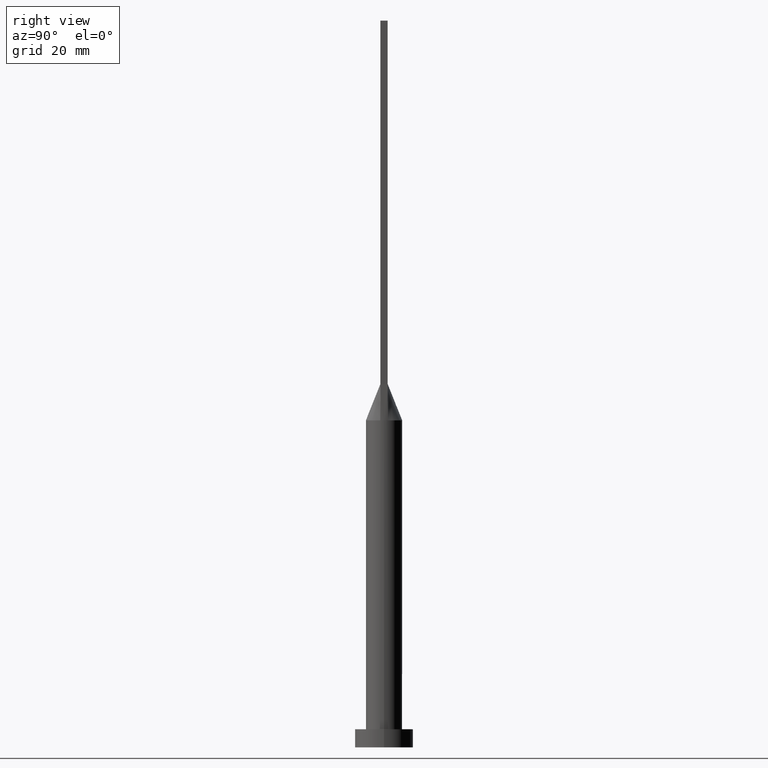
[diagram: clean part render]
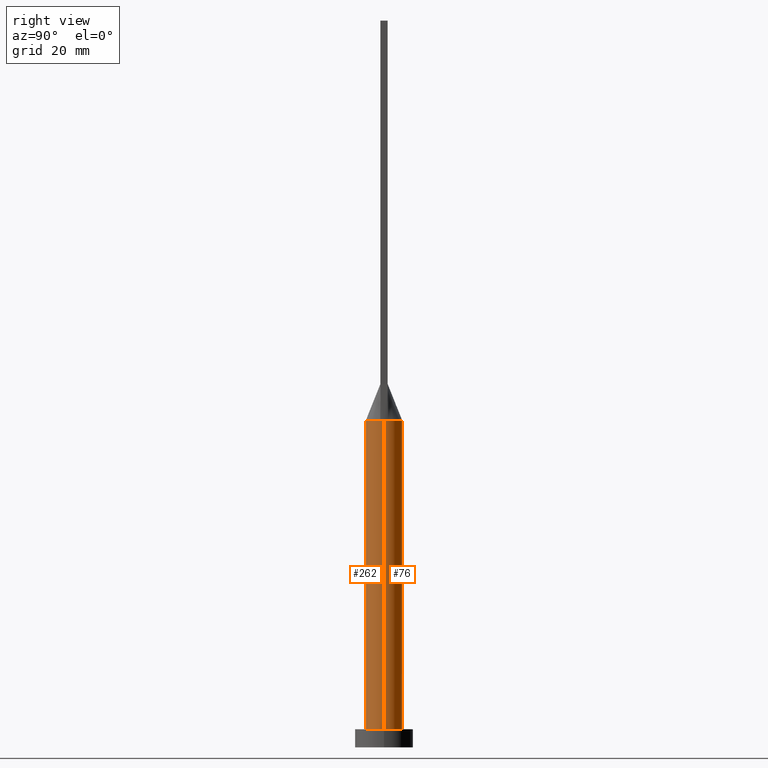
[diagram: same view with one multi-face feature highlighted, each face labeled with its STEP entity id]
A machine part, right view. The highlighted faces form ONE feature: a constant-radius fillet chain: 2 tangent blend faces with common blend radius 5 mm. The faces share edges in the B-rep.
Their STEP definitions:
[1] entity #262 (Cylinder):
#4 = AXIS2_PLACEMENT_3D ( 'NONE', #117, #489, #70 ) ;
#5 = DIRECTION ( 'NONE',  ( 1.000000000000000000, 0.000000000000000000, 0.000000000000000000 ) ) ;
#40 = CIRCLE ( 'NONE', #211, 5.000000000000000000 ) ;
#45 = AXIS2_PLACEMENT_3D ( 'NONE', #261, #314, #321 ) ;
#46 = VERTEX_POINT ( 'NONE', #499 ) ;
#65 = VERTEX_POINT ( 'NONE', #180 ) ;
#70 = DIRECTION ( 'NONE',  ( 1.000000000000000000, 0.000000000000000000, 0.000000000000000000 ) ) ;
#72 = VECTOR ( 'NONE', #448, 1000.000000000000000 ) ;
#84 = VERTEX_POINT ( 'NONE', #434 ) ;
#112 = ORIENTED_EDGE ( 'NONE', *, *, #520, .F. ) ;
#117 = CARTESIAN_POINT ( 'NONE',  ( 0.000000000000000000, 0.000000000000000000, 90.00000000000001421 ) ) ;
#120 = DIRECTION ( 'NONE',  ( -1.000000000000000000, 0.000000000000000000, 0.000000000000000000 ) ) ;
#126 = EDGE_CURVE ( 'NONE', #84, #147, #205, .T. ) ;
#144 = AXIS2_PLACEMENT_3D ( 'NONE', #300, #345, #569 ) ;
#145 = EDGE_CURVE ( 'NONE', #46, #147, #518, .T. ) ;
#147 = VERTEX_POINT ( 'NONE', #503 ) ;
#155 = ORIENTED_EDGE ( 'NONE', *, *, #215, .F. ) ;
#180 = CARTESIAN_POINT ( 'NONE',  ( -5.000000000000000888, -2.735102206719564433E-16, 90.00000000000002842 ) ) ;
#188 = CARTESIAN_POINT ( 'NONE',  ( -5.000000000000000000, 0.000000000000000000, 90.00000000000001421 ) ) ;
#200 = CARTESIAN_POINT ( 'NONE',  ( 0.000000000000000000, 0.000000000000000000, 90.00000000000001421 ) ) ;
#205 = LINE ( 'NONE', #403, #500 ) ;
#211 = AXIS2_PLACEMENT_3D ( 'NONE', #200, #534, #5 ) ;
#215 = EDGE_CURVE ( 'NONE', #466, #453, #276, .T. ) ;
#257 = LINE ( 'NONE', #188, #72 ) ;
#261 = CARTESIAN_POINT ( 'NONE',  ( 0.000000000000000000, 0.000000000000000000, 5.000000000000000000 ) ) ;
#262 = ADVANCED_FACE ( 'NONE', ( #581 ), #494, .T. ) ;
#270 = EDGE_LOOP ( 'NONE', ( #424, #362, #155, #112, #557, #275 ) ) ;
#275 = ORIENTED_EDGE ( 'NONE', *, *, #145, .T. ) ;
#276 = CIRCLE ( 'NONE', #4, 5.000000000000000000 ) ;
#300 = CARTESIAN_POINT ( 'NONE',  ( 0.000000000000000000, 0.000000000000000000, 90.00000000000001421 ) ) ;
#305 = AXIS2_PLACEMENT_3D ( 'NONE', #444, #539, #120 ) ;
#314 = DIRECTION ( 'NONE',  ( 0.000000000000000000, 0.000000000000000000, 1.000000000000000000 ) ) ;
#321 = DIRECTION ( 'NONE',  ( 1.000000000000000000, 0.000000000000000000, 0.000000000000000000 ) ) ;
#329 = EDGE_CURVE ( 'NONE', #65, #46, #257, .T. ) ;
#345 = DIRECTION ( 'NONE',  ( 0.000000000000000000, 0.000000000000000000, 1.000000000000000000 ) ) ;
#362 = ORIENTED_EDGE ( 'NONE', *, *, #409, .F. ) ;
#403 = CARTESIAN_POINT ( 'NONE',  ( 5.000000000000000000, 6.123233995736766282E-16, 90.00000000000001421 ) ) ;
#409 = EDGE_CURVE ( 'NONE', #453, #84, #504, .T. ) ;
#424 = ORIENTED_EDGE ( 'NONE', *, *, #126, .F. ) ;
#425 = DIRECTION ( 'NONE',  ( -0.000000000000000000, -0.000000000000000000, -1.000000000000000000 ) ) ;
#434 = CARTESIAN_POINT ( 'NONE',  ( 5.000000000000000888, 3.511115666546218713E-17, 90.00000000000002842 ) ) ;
#436 = CARTESIAN_POINT ( 'NONE',  ( -4.892752739180945554, -1.030053203145257168, 90.00000000000001421 ) ) ;
#444 = CARTESIAN_POINT ( 'NONE',  ( 0.000000000000000000, 0.000000000000000000, 90.00000000000001421 ) ) ;
#448 = DIRECTION ( 'NONE',  ( -0.000000000000000000, -0.000000000000000000, -1.000000000000000000 ) ) ;
#453 = VERTEX_POINT ( 'NONE', #530 ) ;
#466 = VERTEX_POINT ( 'NONE', #436 ) ;
#489 = DIRECTION ( 'NONE',  ( 0.000000000000000000, 0.000000000000000000, 1.000000000000000000 ) ) ;
#494 = CYLINDRICAL_SURFACE ( 'NONE', #305, 5.000000000000000000 ) ;
#499 = CARTESIAN_POINT ( 'NONE',  ( -5.000000000000000000, 0.000000000000000000, 5.000000000000000000 ) ) ;
#500 = VECTOR ( 'NONE', #425, 1000.000000000000000 ) ;
#503 = CARTESIAN_POINT ( 'NONE',  ( 5.000000000000000000, 6.123233995736766282E-16, 5.000000000000000000 ) ) ;
#504 = CIRCLE ( 'NONE', #144, 5.000000000000000000 ) ;
#518 = CIRCLE ( 'NONE', #45, 5.000000000000000000 ) ;
#520 = EDGE_CURVE ( 'NONE', #65, #466, #40, .T. ) ;
#530 = CARTESIAN_POINT ( 'NONE',  ( 4.892747712986307285, -1.030052143680505683, 90.00000000000001421 ) ) ;
#534 = DIRECTION ( 'NONE',  ( 0.000000000000000000, 0.000000000000000000, 1.000000000000000000 ) ) ;
#539 = DIRECTION ( 'NONE',  ( -0.000000000000000000, -0.000000000000000000, -1.000000000000000000 ) ) ;
#557 = ORIENTED_EDGE ( 'NONE', *, *, #329, .T. ) ;
#569 = DIRECTION ( 'NONE',  ( 1.000000000000000000, -9.769962616701377556E-15, 0.000000000000000000 ) ) ;
#581 = FACE_OUTER_BOUND ( 'NONE', #270, .T. ) ;
[2] entity #76 (Cylinder):
#21 = ORIENTED_EDGE ( 'NONE', *, *, #329, .F. ) ;
#24 = CARTESIAN_POINT ( 'NONE',  ( 4.808752461626938590, 1.429035605956548549, 90.00000000000004263 ) ) ;
#25 = CARTESIAN_POINT ( 'NONE',  ( 0.6760916456145784625, 4.965368365385191218, 90.00000000000004263 ) ) ;
#46 = VERTEX_POINT ( 'NONE', #499 ) ;
#60 = DIRECTION ( 'NONE',  ( -1.000000000000000000, 0.000000000000000000, 0.000000000000000000 ) ) ;
#65 = VERTEX_POINT ( 'NONE', #180 ) ;
#72 = VECTOR ( 'NONE', #448, 1000.000000000000000 ) ;
#76 = ADVANCED_FACE ( 'NONE', ( #449 ), #543, .T. ) ;
#78 = DIRECTION ( 'NONE',  ( 0.000000000000000000, 0.000000000000000000, 1.000000000000000000 ) ) ;
#79 = AXIS2_PLACEMENT_3D ( 'NONE', #538, #482, #295 ) ;
#84 = VERTEX_POINT ( 'NONE', #434 ) ;
#86 = AXIS2_PLACEMENT_3D ( 'NONE', #498, #78, #266 ) ;
#87 = ORIENTED_EDGE ( 'NONE', *, *, #126, .T. ) ;
#97 = CIRCLE ( 'NONE', #79, 5.000000000000000000 ) ;
#104 = VERTEX_POINT ( 'NONE', #193 ) ;
#105 = CARTESIAN_POINT ( 'NONE',  ( -4.892747712986291297, 1.030052143680498133, 90.00000000000001421 ) ) ;
#107 = CARTESIAN_POINT ( 'NONE',  ( 1.649264041307594297, 4.731318088779739917, 89.99999999999998579 ) ) ;
#123 = DIRECTION ( 'NONE',  ( -0.000000000000000000, -0.000000000000000000, -1.000000000000000000 ) ) ;
#126 = EDGE_CURVE ( 'NONE', #84, #147, #205, .T. ) ;
#127 = CARTESIAN_POINT ( 'NONE',  ( -2.546422404201597711, 4.351724242187074765, 90.00000000000001421 ) ) ;
#142 = CARTESIAN_POINT ( 'NONE',  ( -3.067114325249248097, 3.991228734590924976, 90.00000000000002842 ) ) ;
#147 = VERTEX_POINT ( 'NONE', #503 ) ;
#163 = CARTESIAN_POINT ( 'NONE',  ( -1.331739278681919991, 4.830988864699813590, 90.00000000000001421 ) ) ;
#165 = EDGE_CURVE ( 'NONE', #84, #104, #324, .T. ) ;
#180 = CARTESIAN_POINT ( 'NONE',  ( -5.000000000000000888, -2.735102206719564433E-16, 90.00000000000002842 ) ) ;
#188 = CARTESIAN_POINT ( 'NONE',  ( -5.000000000000000000, 0.000000000000000000, 90.00000000000001421 ) ) ;
#191 = CARTESIAN_POINT ( 'NONE',  ( 2.546422404201596823, 4.351724242187075653, 90.00000000000001421 ) ) ;
#193 = CARTESIAN_POINT ( 'NONE',  ( 4.892748924933744803, 1.030052405249211045, 90.00000000000001421 ) ) ;
#205 = LINE ( 'NONE', #403, #500 ) ;
#207 = CARTESIAN_POINT ( 'NONE',  ( 0.3380808736611315979, 4.999999999999999112, 90.00000000000001421 ) ) ;
#216 = AXIS2_PLACEMENT_3D ( 'NONE', #296, #123, #60 ) ;
#218 = ORIENTED_EDGE ( 'NONE', *, *, #304, .F. ) ;
#220 = DIRECTION ( 'NONE',  ( 1.000000000000000000, 0.000000000000000000, 0.000000000000000000 ) ) ;
#240 = CARTESIAN_POINT ( 'NONE',  ( 4.667610010780610885, 1.859271532507960289, 90.00000000000004263 ) ) ;
#253 = CARTESIAN_POINT ( 'NONE',  ( 4.892748924933744803, 1.030052405249211045, 90.00000000000001421 ) ) ;
#257 = LINE ( 'NONE', #188, #72 ) ;
#266 = DIRECTION ( 'NONE',  ( 1.000000000000000000, 0.000000000000000000, 0.000000000000000000 ) ) ;
#290 = CARTESIAN_POINT ( 'NONE',  ( -4.214142381859630859, 2.735777372109856387, 90.00000000000002842 ) ) ;
#295 = DIRECTION ( 'NONE',  ( 1.000000000000000000, 0.000000000000000000, 0.000000000000000000 ) ) ;
#296 = CARTESIAN_POINT ( 'NONE',  ( 0.000000000000000000, 0.000000000000000000, 90.00000000000001421 ) ) ;
#304 = EDGE_CURVE ( 'NONE', #567, #65, #410, .T. ) ;
#312 = CARTESIAN_POINT ( 'NONE',  ( -1.649264041307594963, 4.731318088779739917, 90.00000000000001421 ) ) ;
#324 = CIRCLE ( 'NONE', #406, 5.000000000000000000 ) ;
#329 = EDGE_CURVE ( 'NONE', #65, #46, #257, .T. ) ;
#342 = EDGE_CURVE ( 'NONE', #104, #567, #568, .T. ) ;
#343 = CARTESIAN_POINT ( 'NONE',  ( 3.900093280396791151, 3.182195704254724422, 90.00000000000004263 ) ) ;
#359 = CARTESIAN_POINT ( 'NONE',  ( -0.6760916456145782405, 4.965368365385191218, 90.00000000000001421 ) ) ;
#370 = ORIENTED_EDGE ( 'NONE', *, *, #165, .F. ) ;
#376 = CARTESIAN_POINT ( 'NONE',  ( -4.667610010780610885, 1.859271532507960067, 90.00000000000004263 ) ) ;
#403 = CARTESIAN_POINT ( 'NONE',  ( 5.000000000000000000, 6.123233995736766282E-16, 90.00000000000001421 ) ) ;
#405 = EDGE_CURVE ( 'NONE', #147, #46, #97, .T. ) ;
#406 = AXIS2_PLACEMENT_3D ( 'NONE', #510, #451, #220 ) ;
#407 = ORIENTED_EDGE ( 'NONE', *, *, #342, .F. ) ;
#410 = CIRCLE ( 'NONE', #86, 5.000000000000000000 ) ;
#425 = DIRECTION ( 'NONE',  ( -0.000000000000000000, -0.000000000000000000, -1.000000000000000000 ) ) ;
#428 = CARTESIAN_POINT ( 'NONE',  ( -4.808752461626937702, 1.429035605956548771, 90.00000000000002842 ) ) ;
#430 = CARTESIAN_POINT ( 'NONE',  ( 4.214142381859630859, 2.735777372109855943, 90.00000000000002842 ) ) ;
#432 = CARTESIAN_POINT ( 'NONE',  ( 1.331739278681919991, 4.830988864699814478, 90.00000000000002842 ) ) ;
#434 = CARTESIAN_POINT ( 'NONE',  ( 5.000000000000000888, 3.511115666546218713E-17, 90.00000000000002842 ) ) ;
#435 = EDGE_LOOP ( 'NONE', ( #370, #87, #556, #21, #218, #407 ) ) ;
#448 = DIRECTION ( 'NONE',  ( -0.000000000000000000, -0.000000000000000000, -1.000000000000000000 ) ) ;
#449 = FACE_OUTER_BOUND ( 'NONE', #435, .T. ) ;
#451 = DIRECTION ( 'NONE',  ( 0.000000000000000000, 0.000000000000000000, 1.000000000000000000 ) ) ;
#482 = DIRECTION ( 'NONE',  ( 0.000000000000000000, 0.000000000000000000, 1.000000000000000000 ) ) ;
#498 = CARTESIAN_POINT ( 'NONE',  ( 0.000000000000000000, 0.000000000000000000, 90.00000000000001421 ) ) ;
#499 = CARTESIAN_POINT ( 'NONE',  ( -5.000000000000000000, 0.000000000000000000, 5.000000000000000000 ) ) ;
#500 = VECTOR ( 'NONE', #425, 1000.000000000000000 ) ;
#503 = CARTESIAN_POINT ( 'NONE',  ( 5.000000000000000000, 6.123233995736766282E-16, 5.000000000000000000 ) ) ;
#510 = CARTESIAN_POINT ( 'NONE',  ( 0.000000000000000000, 0.000000000000000000, 90.00000000000001421 ) ) ;
#512 = CARTESIAN_POINT ( 'NONE',  ( -4.892747712986291297, 1.030052143680498133, 90.00000000000001421 ) ) ;
#528 = CARTESIAN_POINT ( 'NONE',  ( 3.067114325249248097, 3.991228734590925864, 90.00000000000008527 ) ) ;
#538 = CARTESIAN_POINT ( 'NONE',  ( 0.000000000000000000, 0.000000000000000000, 5.000000000000000000 ) ) ;
#543 = CYLINDRICAL_SURFACE ( 'NONE', #216, 5.000000000000000000 ) ;
#546 = CARTESIAN_POINT ( 'NONE',  ( -3.900093280396789819, 3.182195704254724422, 90.00000000000001421 ) ) ;
#556 = ORIENTED_EDGE ( 'NONE', *, *, #405, .T. ) ;
#567 = VERTEX_POINT ( 'NONE', #105 ) ;
#568 = B_SPLINE_CURVE_WITH_KNOTS ( 'NONE', 3,
 ( #253, #24, #240, #430, #343, #528, #191, #107, #432, #25, #207, #587, #359, #163, #312, #127, #142, #546, #290, #376, #428, #512 ),
 .UNSPECIFIED., .F., .F.,
 ( 4, 2, 2, 2, 2, 2, 2, 2, 2, 2, 4 ),
 ( 0.000000000000000000, 0.1250000000000000278, 0.2500000000000000000, 0.3749999999999999445, 0.4375000000000000000, 0.5000000000000000000, 0.5625000000000000000, 0.6250000000000000000, 0.7500000000000000000, 0.8750000000000001110, 1.000000000000000000 ),
 .UNSPECIFIED. ) ;
#587 = CARTESIAN_POINT ( 'NONE',  ( -0.3380808736611314869, 4.999999999999999112, 90.00000000000002842 ) ) ;